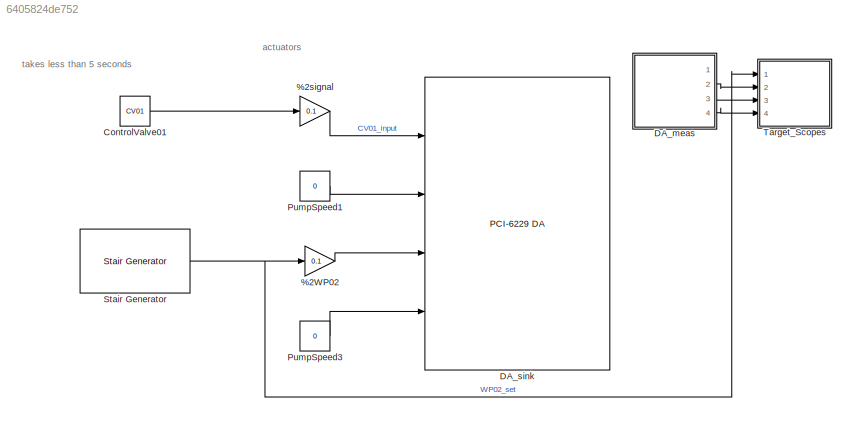
MODEL slx_6405824de752
KIND model
CONFIG AbsTol = auto
CONFIG EnableMultiTasking = on
CONFIG FixedStep = auto
CONFIG MaxStep = 0.1
CONFIG MinStep = auto
CONFIG RelTol = 1e-3
CONFIG SampleTimeConstraint = Unconstrained
CONFIG Solver = FixedStepAuto
CONFIG SolverName = FixedStepAuto
CONFIG StartTime = 0.0
CONFIG StopTime = simstop
BLOCK [Gain] %2WP02
  Gain = 0.1
  OutDataTypeStr = Inherit: Inherit via internal rule
  ParamDataTypeStr = Inherit: Inherit via internal rule
  SaturateOnIntegerOverflow = off
BLOCK [Gain] %2signal
  Gain = 0.1
  OutDataTypeStr = Inherit: Inherit via internal rule
  ParamDataTypeStr = Inherit: Inherit via internal rule
  SaturateOnIntegerOverflow = off
BLOCK [Constant] ControlValve01
  Value = CV01
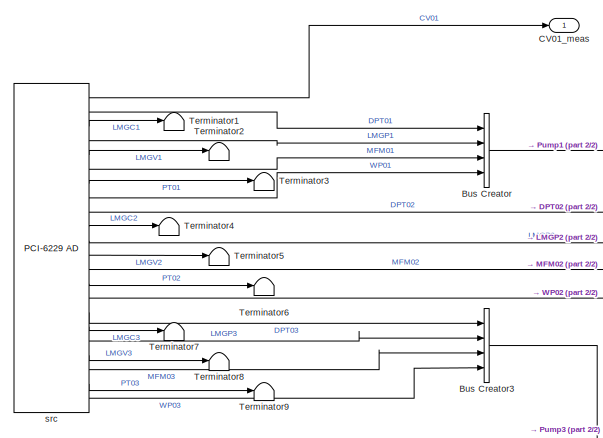
[diagram: DA_meas - part 1/2, middle left region]
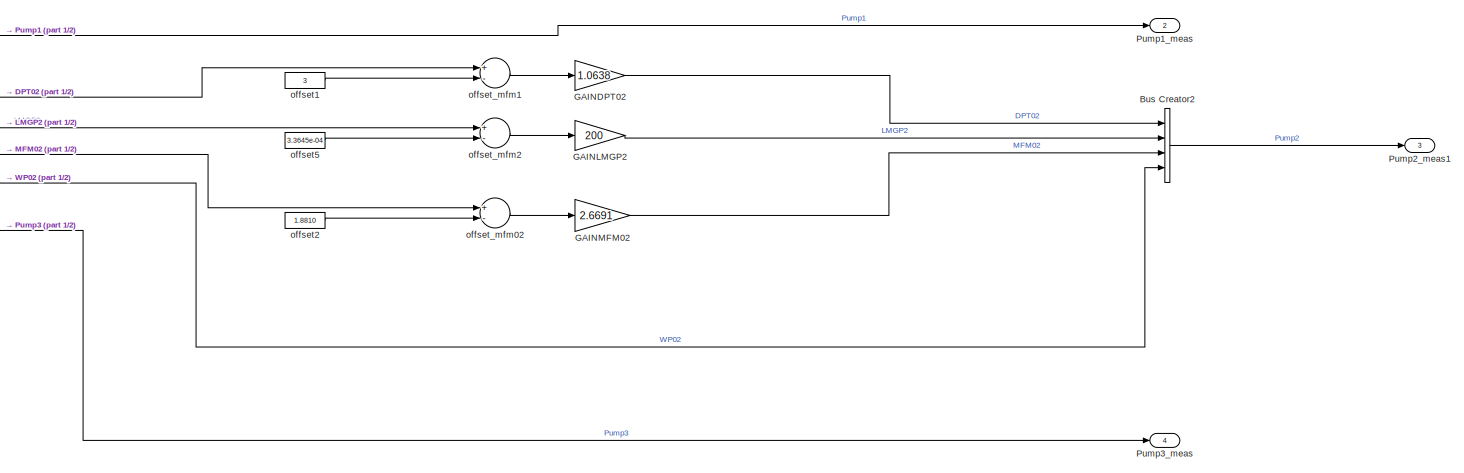
[diagram: DA_meas - part 2/2, most of the canvas]
BLOCK [SubSystem] DA_meas
  Ports = [0, 4]
  RequestExecContextInheritance = off
  Variant = off
BLOCK [BusCreator] DA_meas/Bus Creator
  DisplayOption = bar
  InheritFromInputs = on
  Inputs = 4
  Ports = [4, 1]
BLOCK [BusCreator] DA_meas/Bus Creator2
  DisplayOption = bar
  InheritFromInputs = on
  Inputs = 4
  Ports = [4, 1]
BLOCK [BusCreator] DA_meas/Bus Creator3
  DisplayOption = bar
  InheritFromInputs = on
  Inputs = 4
  Ports = [4, 1]
BLOCK [Outport] DA_meas/CV01_meas
  IconDisplay = Port number
BLOCK [Gain] DA_meas/GAINDPT02
  Gain = 1.0638
  OutDataTypeStr = Inherit: Inherit via internal rule
  ParamDataTypeStr = Inherit: Inherit via internal rule
  SaturateOnIntegerOverflow = off
BLOCK [Gain] DA_meas/GAINLMGP2
  Gain = 200
  OutDataTypeStr = Inherit: Inherit via internal rule
  ParamDataTypeStr = Inherit: Inherit via internal rule
  SaturateOnIntegerOverflow = off
BLOCK [Gain] DA_meas/GAINMFM02
  Gain = 2.6691
  OutDataTypeStr = Inherit: Inherit via internal rule
  ParamDataTypeStr = Inherit: Inherit via internal rule
  SaturateOnIntegerOverflow = off
BLOCK [Outport] DA_meas/Pump1_meas
  IconDisplay = Port number
  Port = 2
BLOCK [Outport] DA_meas/Pump2_meas1
  IconDisplay = Port number
  Port = 3
BLOCK [Outport] DA_meas/Pump3_meas
  IconDisplay = Port number
  Port = 4
BLOCK [Terminator] DA_meas/Terminator1
BLOCK [Terminator] DA_meas/Terminator2
BLOCK [Terminator] DA_meas/Terminator3
BLOCK [Terminator] DA_meas/Terminator4
BLOCK [Terminator] DA_meas/Terminator5
BLOCK [Terminator] DA_meas/Terminator6
BLOCK [Terminator] DA_meas/Terminator7
BLOCK [Terminator] DA_meas/Terminator8
BLOCK [Terminator] DA_meas/Terminator9
BLOCK [Constant] DA_meas/offset1
  Value = 3
BLOCK [Constant] DA_meas/offset2
  Value = 1.8810
BLOCK [Constant] DA_meas/offset5
  Value = 3.3645e-04
BLOCK [Sum] DA_meas/offset_mfm02
  InputSameDT = off
  Inputs = +-
  OutDataTypeStr = Inherit: Inherit via internal rule
  Ports = [2, 1]
  SaturateOnIntegerOverflow = off
BLOCK [Sum] DA_meas/offset_mfm1
  InputSameDT = off
  Inputs = +-
  OutDataTypeStr = Inherit: Inherit via internal rule
  Ports = [2, 1]
  SaturateOnIntegerOverflow = off
BLOCK [Sum] DA_meas/offset_mfm2
  InputSameDT = off
  Inputs = +-
  OutDataTypeStr = Inherit: Inherit via internal rule
  Ports = [2, 1]
  SaturateOnIntegerOverflow = off
BLOCK [Reference] DA_meas/src  REF=xpcnilib/A//D/M Series/PCI-6229 AD
  Ports = [0, 22]
  SourceBlock = xpcnilib/A//D/M Series/PCI-6229 AD
  SourceType = adnipci6229
BLOCK [Reference] DA_sink  REF=xpcnilib/D//A/M Series/PCI-6229 DA
  Ports = [4]
  SourceBlock = xpcnilib/D//A/M Series/PCI-6229 DA
  SourceType = danipci6229
BLOCK [Constant] PumpSpeed1
  Value = 0
BLOCK [Constant] PumpSpeed3
  Value = 0
BLOCK [Reference] Stair Generator  REF=powerlib_meascontrol/Pulse & Signal
Generators/Stair
Generator
  Ports = [0, 1]
  SourceBlock = powerlib_meascontrol/Pulse & Signal\nGenerators/Stair\nGenerator
  SourceType = Stair Generator
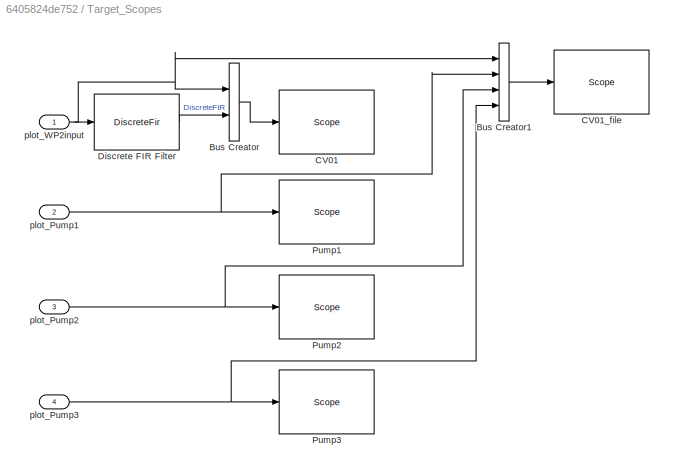
BLOCK [SubSystem] Target_Scopes
  Ports = [4]
  RequestExecContextInheritance = off
  Variant = off
BLOCK [BusCreator] Target_Scopes/Bus Creator
  DisplayOption = bar
  InheritFromInputs = on
  Inputs = 2
  Ports = [2, 1]
BLOCK [BusCreator] Target_Scopes/Bus Creator1
  DisplayOption = bar
  InheritFromInputs = on
  Inputs = 4
  Ports = [4, 1]
BLOCK [Reference] Target_Scopes/CV01  REF=slrtlib/Displays and
Logging/Scope 
  Ports = [1]
  SourceBlock = slrtlib/Displays and\nLogging/Scope
  SourceType = xpcscopeblock
BLOCK [Reference] Target_Scopes/CV01_file  REF=slrtlib/Displays and
Logging/Scope 
  Ports = [1]
  SourceBlock = slrtlib/Displays and\nLogging/Scope
  SourceType = xpcscopeblock
BLOCK [DiscreteFir] Target_Scopes/Discrete FIR Filter
  AccumDataTypeStr = Inherit: Same as product output
  Commented = on
  InputPortMap = u0
  OutputPortMap = o0
  Ports = [1, 1]
  ProductDataTypeStr = Inherit: Same as input
BLOCK [Reference] Target_Scopes/Pump1  REF=slrtlib/Displays and
Logging/Scope 
  Ports = [1]
  SourceBlock = slrtlib/Displays and\nLogging/Scope
  SourceType = xpcscopeblock
BLOCK [Reference] Target_Scopes/Pump2  REF=slrtlib/Displays and
Logging/Scope 
  Ports = [1]
  SourceBlock = slrtlib/Displays and\nLogging/Scope
  SourceType = xpcscopeblock
BLOCK [Reference] Target_Scopes/Pump3  REF=slrtlib/Displays and
Logging/Scope 
  Ports = [1]
  SourceBlock = slrtlib/Displays and\nLogging/Scope
  SourceType = xpcscopeblock
BLOCK [Inport] Target_Scopes/plot_Pump1
  IconDisplay = Port number
  Port = 2
BLOCK [Inport] Target_Scopes/plot_Pump2
  IconDisplay = Port number
  Port = 3
BLOCK [Inport] Target_Scopes/plot_Pump3
  IconDisplay = Port number
  Port = 4
BLOCK [Inport] Target_Scopes/plot_WP2input
  IconDisplay = Port number
ANNOTATION (root): actuators
ANNOTATION (root): takes less than 5 seconds
LINE %2WP02:1 -> DA_sink:3
LINE %2signal:1 -> DA_sink:1
LINE ControlValve01:1 -> %2signal:1
LINE DA_meas/Bus Creator2:1 -> DA_meas/Pump2_meas1:1
LINE DA_meas/Bus Creator3:1 -> DA_meas/Pump3_meas:1
LINE DA_meas/Bus Creator:1 -> DA_meas/Pump1_meas:1
LINE DA_meas/GAINDPT02:1 -> DA_meas/Bus Creator2:1
LINE DA_meas/GAINLMGP2:1 -> DA_meas/Bus Creator2:2
LINE DA_meas/GAINMFM02:1 -> DA_meas/Bus Creator2:3
LINE DA_meas/offset1:1 -> DA_meas/offset_mfm1:2
LINE DA_meas/offset2:1 -> DA_meas/offset_mfm02:2
LINE DA_meas/offset5:1 -> DA_meas/offset_mfm2:2
LINE DA_meas/offset_mfm02:1 -> DA_meas/GAINMFM02:1
LINE DA_meas/offset_mfm1:1 -> DA_meas/GAINDPT02:1
LINE DA_meas/offset_mfm2:1 -> DA_meas/GAINLMGP2:1
LINE DA_meas/src:1 -> DA_meas/CV01_meas:1
LINE DA_meas/src:10 -> DA_meas/Terminator4:1
LINE DA_meas/src:11 -> DA_meas/offset_mfm2:1
LINE DA_meas/src:12 -> DA_meas/Terminator5:1
LINE DA_meas/src:13 -> DA_meas/offset_mfm02:1
LINE DA_meas/src:14 -> DA_meas/Terminator6:1
LINE DA_meas/src:15 -> DA_meas/Bus Creator2:4
LINE DA_meas/src:16 -> DA_meas/Bus Creator3:1
LINE DA_meas/src:17 -> DA_meas/Terminator7:1
LINE DA_meas/src:18 -> DA_meas/Bus Creator3:2
LINE DA_meas/src:19 -> DA_meas/Terminator8:1
LINE DA_meas/src:2 -> DA_meas/Bus Creator:1
LINE DA_meas/src:20 -> DA_meas/Bus Creator3:3
LINE DA_meas/src:21 -> DA_meas/Terminator9:1
LINE DA_meas/src:22 -> DA_meas/Bus Creator3:4
LINE DA_meas/src:3 -> DA_meas/Terminator1:1
LINE DA_meas/src:4 -> DA_meas/Bus Creator:2
LINE DA_meas/src:5 -> DA_meas/Terminator2:1
LINE DA_meas/src:6 -> DA_meas/Bus Creator:3
LINE DA_meas/src:7 -> DA_meas/Terminator3:1
LINE DA_meas/src:8 -> DA_meas/Bus Creator:4
LINE DA_meas/src:9 -> DA_meas/offset_mfm1:1
LINE DA_meas:2 -> Target_Scopes:2
LINE DA_meas:3 -> Target_Scopes:3
LINE DA_meas:4 -> Target_Scopes:4
LINE PumpSpeed1:1 -> DA_sink:2
LINE PumpSpeed3:1 -> DA_sink:4
NET Stair Generator:1 -> %2WP02:1, Target_Scopes:1
LINE Target_Scopes/Bus Creator1:1 -> Target_Scopes/CV01_file:1
LINE Target_Scopes/Bus Creator:1 -> Target_Scopes/CV01:1
LINE Target_Scopes/Discrete FIR Filter:1 -> Target_Scopes/Bus Creator:2
NET Target_Scopes/plot_Pump1:1 -> Target_Scopes/Bus Creator1:2, Target_Scopes/Pump1:1
NET Target_Scopes/plot_Pump2:1 -> Target_Scopes/Bus Creator1:3, Target_Scopes/Pump2:1
NET Target_Scopes/plot_Pump3:1 -> Target_Scopes/Bus Creator1:4, Target_Scopes/Pump3:1
NET Target_Scopes/plot_WP2input:1 -> Target_Scopes/Bus Creator1:1, Target_Scopes/Bus Creator:1, Target_Scopes/Discrete FIR Filter:1
note: NET lines group one-source signal fan-out (src -> all destinations, sorted); 1:1 wires keep LINE
